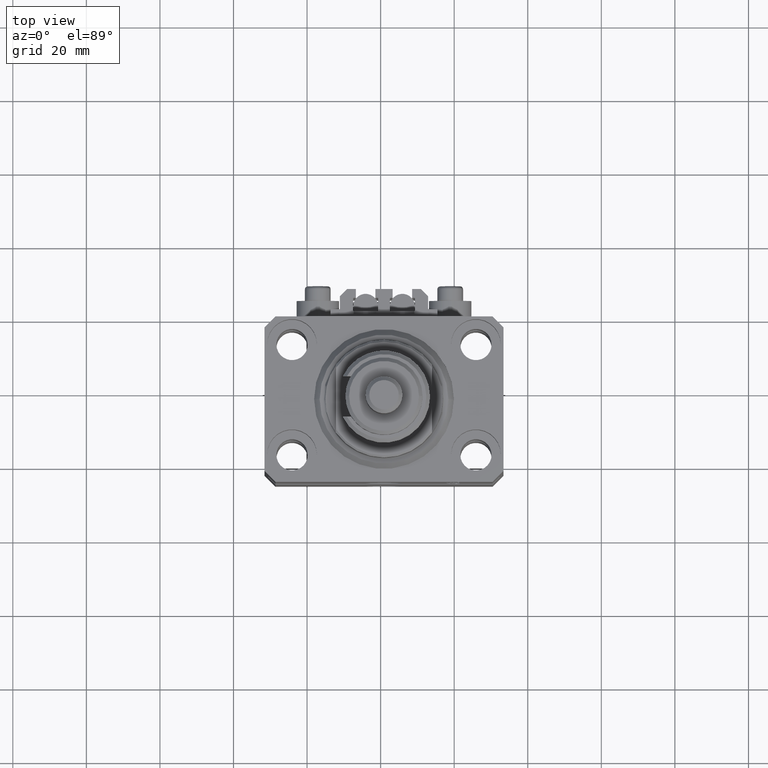
[diagram: clean part render]
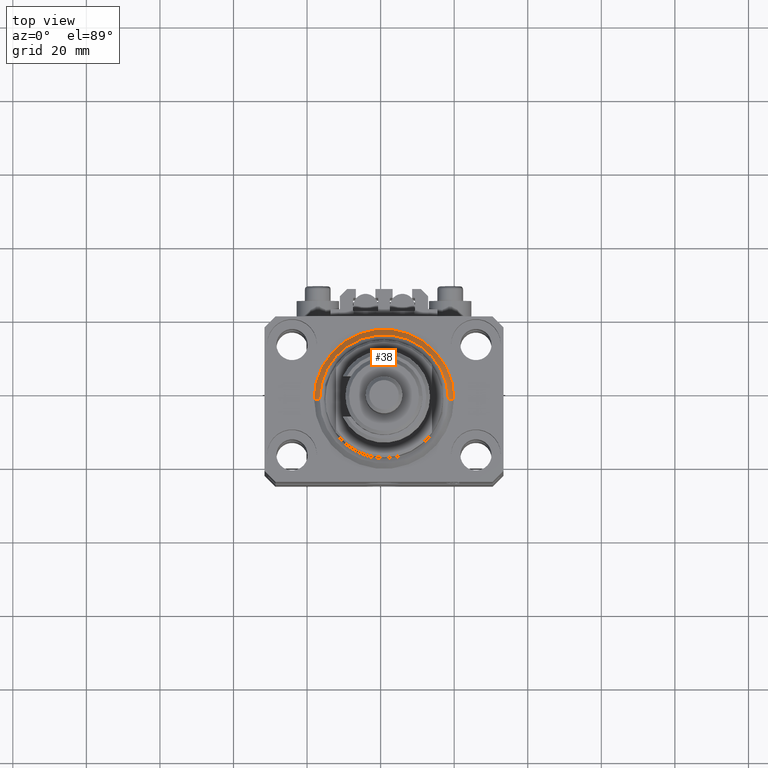
[diagram: same view with one face highlighted and labeled with its STEP entity id]
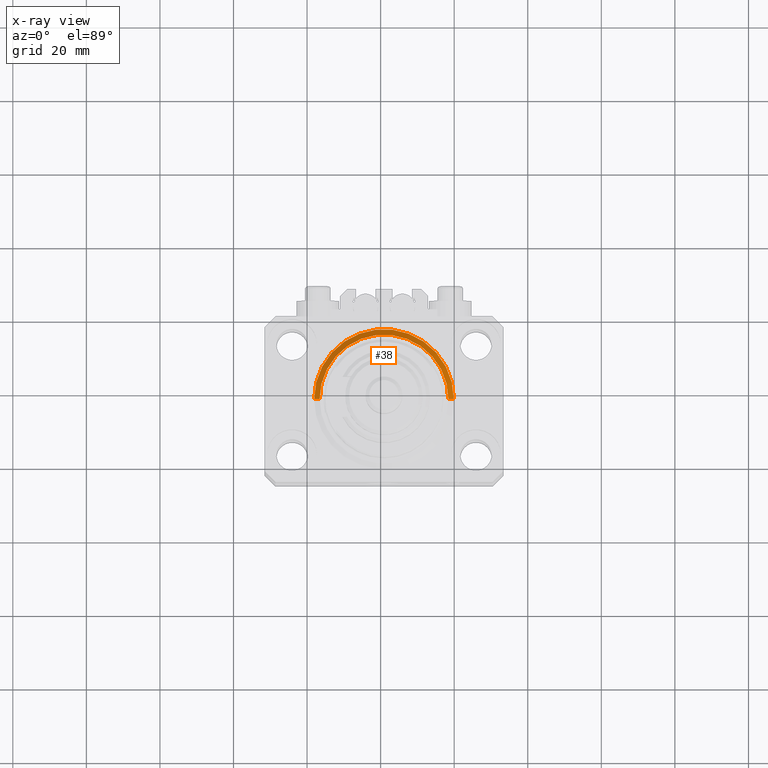
[diagram: x-ray of the same camera — body ghosted, the highlighted face saturated]
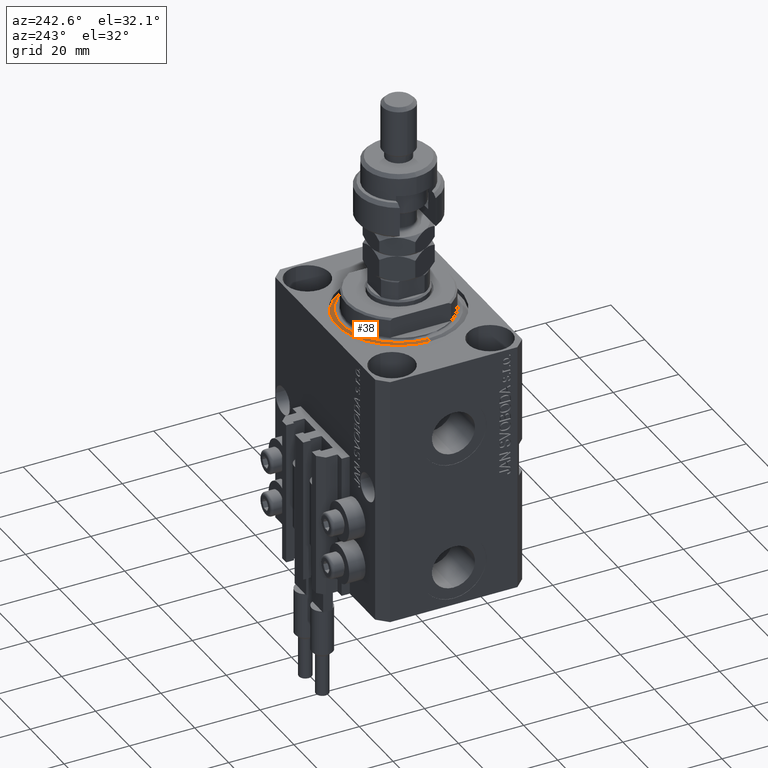
[diagram: same view with one face highlighted and labeled with its STEP entity id]
A machine part, top view. The second image highlights one B-rep face of the part: STEP entity #38.
The next image is the same camera in x-ray: the body ghosted, the highlighted face saturated — about 0% of this face is hidden behind the body in this view.
A second angle (auxiliary view) of the same face is appended — the face is thin or edge-on in the first view.
In plain terms, the highlighted conical surface has half-angle 45 deg.
Its self-contained STEP definition (entity closure, byte-faithful):
#38 = ADVANCED_FACE ( 'NONE', ( #594 ), #17276, .T. ) ;
#594 = FACE_OUTER_BOUND ( 'NONE', #7758, .T. ) ;
#2336 = AXIS2_PLACEMENT_3D ( 'NONE', #32273, #27103, #31244 ) ;
#3420 = EDGE_CURVE ( 'NONE', #6178, #31215, #7135, .T. ) ;
#3657 = EDGE_CURVE ( 'NONE', #13000, #13332, #39994, .T. ) ;
#5873 = CARTESIAN_POINT ( 'NONE',  ( 0.000000000000000000, 0.000000000000000000, 1.500000000000004885 ) ) ;
#6178 = VERTEX_POINT ( 'NONE', #39952 ) ;
#7135 = LINE ( 'NONE', #22984, #48100 ) ;
#7758 = EDGE_LOOP ( 'NONE', ( #43665, #50294, #25271, #23750 ) ) ;
#7941 = AXIS2_PLACEMENT_3D ( 'NONE', #11383, #22284, #34747 ) ;
#10896 = CARTESIAN_POINT ( 'NONE',  ( -19.00000000000000000, 0.000000000000000000, 1.500000000000004885 ) ) ;
#11383 = CARTESIAN_POINT ( 'NONE',  ( 0.000000000000000000, 0.000000000000000000, 0.000000000000000000 ) ) ;
#11819 = DIRECTION ( 'NONE',  ( -0.7071067811865483499, 8.659560562354943952E-17, 0.7071067811865467956 ) ) ;
#13000 = VERTEX_POINT ( 'NONE', #32423 ) ;
#13332 = VERTEX_POINT ( 'NONE', #45562 ) ;
#13715 = CIRCLE ( 'NONE', #7941, 17.49999999999999289 ) ;
#17276 = CONICAL_SURFACE ( 'NONE', #2336, 19.00000000000000000, 0.7853981633974492782 ) ;
#19305 = EDGE_CURVE ( 'NONE', #6178, #13000, #13715, .T. ) ;
#22284 = DIRECTION ( 'NONE',  ( -0.000000000000000000, -0.000000000000000000, -1.000000000000000000 ) ) ;
#22984 = CARTESIAN_POINT ( 'NONE',  ( -19.00000000000000000, 2.326828918379970970E-15, 1.500000000000004885 ) ) ;
#23750 = ORIENTED_EDGE ( 'NONE', *, *, #3657, .F. ) ;
#25271 = ORIENTED_EDGE ( 'NONE', *, *, #33313, .F. ) ;
#27103 = DIRECTION ( 'NONE',  ( -0.000000000000000000, -0.000000000000000000, 1.000000000000000000 ) ) ;
#28180 = CIRCLE ( 'NONE', #43104, 19.00000000000000000 ) ;
#31215 = VERTEX_POINT ( 'NONE', #10896 ) ;
#31244 = DIRECTION ( 'NONE',  ( 1.000000000000000000, 0.000000000000000000, 0.000000000000000000 ) ) ;
#32273 = CARTESIAN_POINT ( 'NONE',  ( 0.000000000000000000, 0.000000000000000000, 1.500000000000004885 ) ) ;
#32423 = CARTESIAN_POINT ( 'NONE',  ( 17.49999999999999289, 0.000000000000000000, 0.000000000000000000 ) ) ;
#33313 = EDGE_CURVE ( 'NONE', #13332, #31215, #28180, .T. ) ;
#34747 = DIRECTION ( 'NONE',  ( 1.000000000000000000, 0.000000000000000000, 0.000000000000000000 ) ) ;
#35844 = CARTESIAN_POINT ( 'NONE',  ( 19.00000000000000000, 0.000000000000000000, 1.500000000000004885 ) ) ;
#37558 = DIRECTION ( 'NONE',  ( -0.000000000000000000, -0.000000000000000000, 1.000000000000000000 ) ) ;
#39952 = CARTESIAN_POINT ( 'NONE',  ( -17.49999999999999289, 2.234980408443919215E-15, 0.000000000000000000 ) ) ;
#39994 = LINE ( 'NONE', #35844, #48900 ) ;
#43104 = AXIS2_PLACEMENT_3D ( 'NONE', #5873, #37558, #45605 ) ;
#43665 = ORIENTED_EDGE ( 'NONE', *, *, #19305, .F. ) ;
#45562 = CARTESIAN_POINT ( 'NONE',  ( 19.00000000000000000, 2.326828918379970970E-15, 1.500000000000004885 ) ) ;
#45605 = DIRECTION ( 'NONE',  ( 1.000000000000000000, 0.000000000000000000, 0.000000000000000000 ) ) ;
#47782 = DIRECTION ( 'NONE',  ( 0.7071067811865483499, 0.000000000000000000, 0.7071067811865467956 ) ) ;
#48100 = VECTOR ( 'NONE', #11819, 1000.000000000000000 ) ;
#48900 = VECTOR ( 'NONE', #47782, 1000.000000000000000 ) ;
#50294 = ORIENTED_EDGE ( 'NONE', *, *, #3420, .T. ) ;